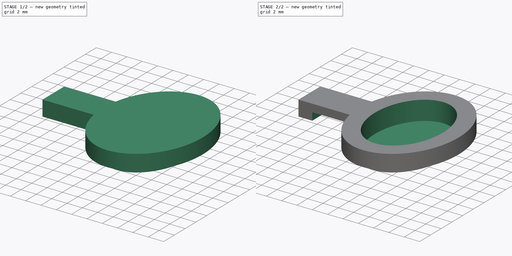
[diagram: build sequence overview — one tinted view per stage of 2, left to right]
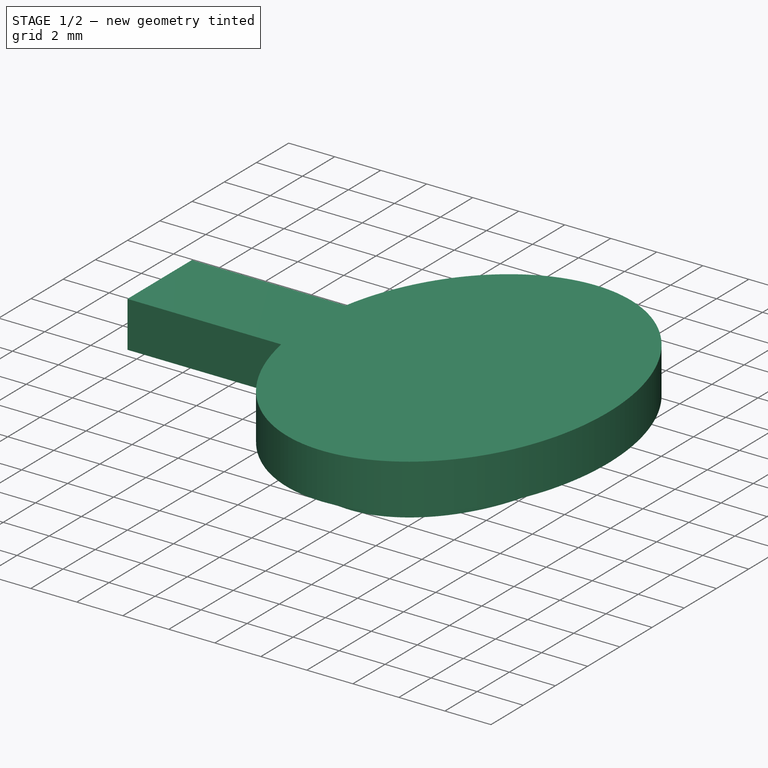
[diagram: stage 1 of 2 — iso view after this stage's code; geometry added in this stage tinted green]
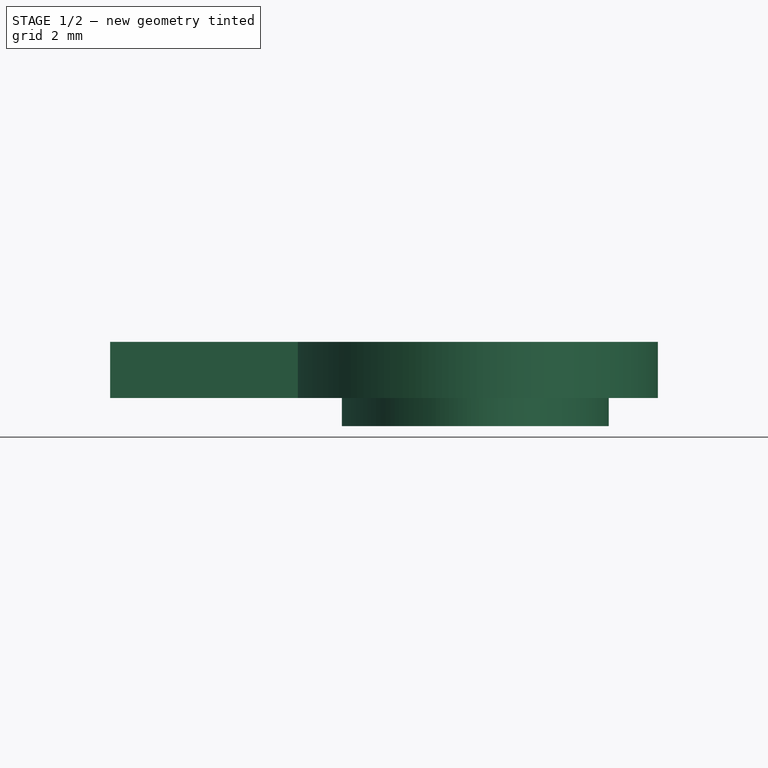
[diagram: stage 1 of 2 — front view after this stage's code; geometry added in this stage tinted green]
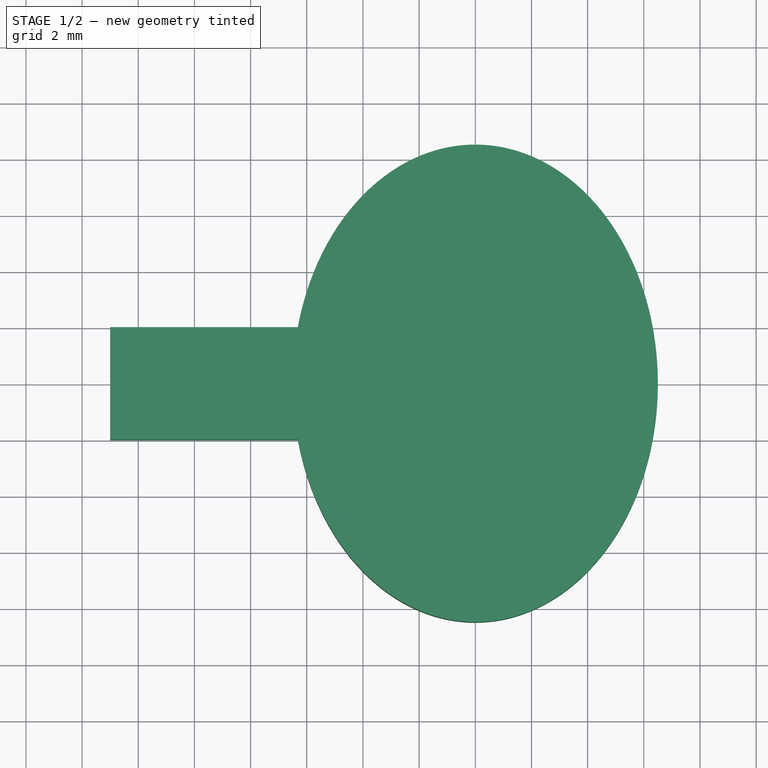
[diagram: stage 1 of 2 — top view after this stage's code; geometry added in this stage tinted green]
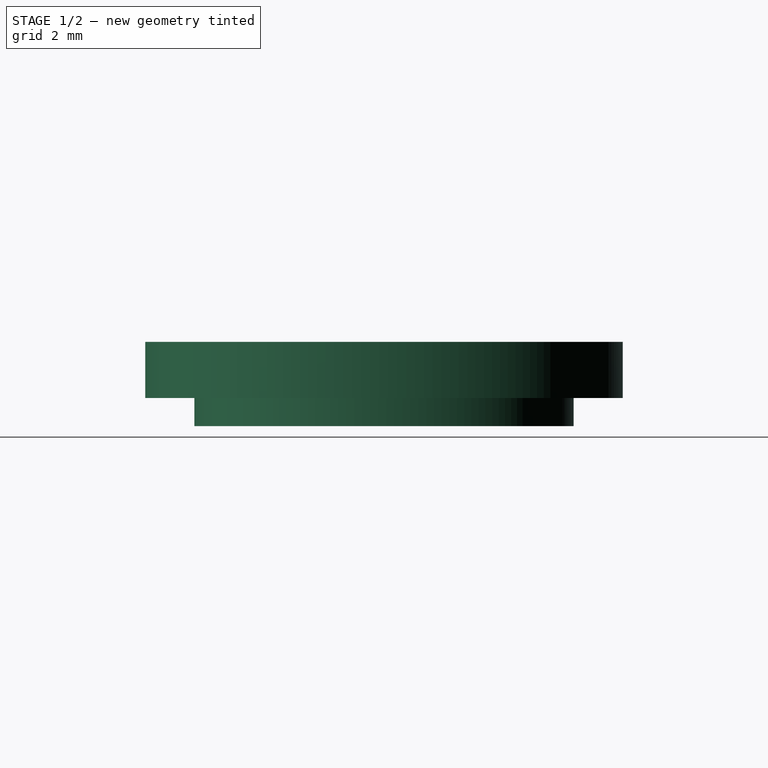
[diagram: stage 1 of 2 — right view after this stage's code; geometry added in this stage tinted green]
FCSTD DOCUMENT  (FreeCAD 0.20R27319 (Git))
Label: Remote Button Cap
License: All rights reserved
LicenseURL: http://en.wikipedia.org/wiki/All_rights_reserved
objects: Sketcher::SketchObject×4, PartDesign::Pad×2, PartDesign::Pocket×2, PartDesign::Body×1, App::MeasureDistance×1
note: 13 computed .brp shape members not serialized (recipe doc carries the construction recipe); baked Part::Feature solids carry a one-line shape summary decoded from their .brp

FEATURE [Sketcher::SketchObject] Sketch
  FullyConstrained = true
  MapMode = 5
  Support = -> [XY_Plane]
  sketch-geometry (5):
    g0: Ellipse CenterX=0 CenterY=0 CenterZ=0 NormalX=0 NormalY=0 NormalZ=1 MajorRadius=6.75 MinorRadius=4.75 AngleXU=-1.5708
    g1: LineSegment StartX=0 StartY=-6.75 StartZ=0 EndX=0 EndY=6.75 EndZ=0
    g2: LineSegment StartX=4.75 StartY=0 StartZ=0 EndX=-4.75 EndY=0 EndZ=0
    g3: GeomPoint X=5e-16 Y=-4.79583 Z=0
    g4: GeomPoint X=0 Y=4.79583 Z=0
  constraints (5):
    c: InternalAlignment(g1-g4 -> g0) x4
    c: Coincident(g0,g-1)
    c: PointOnObject(g2,g-1)
    c: DistanceY(g1,g1) = 13.5
    c: DistanceX(g2,g2) = 9.5
FEATURE [PartDesign::Pad] Pad
  Direction = (0,0,1)
  Length = 1
  Length2 = 10
  Profile = -> Sketch
  ReferenceAxis = -> Sketch [N_Axis]
  Type = 0
FEATURE [Sketcher::SketchObject] Sketch001
  FullyConstrained = true
  MapMode = 5
  Placement = pos=(0,0,1) rot=(0,0,1;0rad)
  Support = -> [Pad]
  sketch-geometry (9):
    g0: ArcOfEllipse CenterX=0 CenterY=0 CenterZ=0 NormalX=0 NormalY=0 NormalZ=1 MajorRadius=8.5 MinorRadius=6.5 AngleXU=1.5708 StartAngle=1.80832 EndAngle=7.61646
    g1: LineSegment StartX=0 StartY=8.5 StartZ=0 EndX=0 EndY=-8.5 EndZ=0
    g2: LineSegment StartX=-6.5 StartY=0 StartZ=0 EndX=6.5 EndY=0 EndZ=0
    g3: GeomPoint X=6e-16 Y=5.47723 Z=0
    g4: GeomPoint X=0 Y=-5.47723 Z=0
    g5: LineSegment StartX=-13 StartY=2 StartZ=0 EndX=-13 EndY=-2 EndZ=0
    g6: LineSegment StartX=-13 StartY=-2 StartZ=0 EndX=-6.31751 EndY=-2 EndZ=0
    g7: LineSegment StartX=-6.31751 StartY=2 StartZ=0 EndX=-13 EndY=2 EndZ=0
    g8: GeomPoint X=-9.65875 Y=0 Z=0
  constraints (16):
    c: InternalAlignment(g1-g4 -> g0) x4
    c: Coincident(g0,g-1)
    c: PointOnObject(g2,g-1)
    c: DistanceY(g1,g1) = 17
    c: DistanceX(g2,g2) = 13
    c: Coincident(g5,g6)
    c: Coincident(g7,g5)
    c: Horizontal(g6)
    c: Horizontal(g7)
    c: Vertical(g5)
    c: Symmetric(g6,g5,g8)
    c: PointOnObject(g8,g-1)
    c: Coincident(g0,g7)
    c: Coincident(g0,g6)
    c: DistanceX(g5,g0) = 13
    c: Distance(g5) = 4
FEATURE [PartDesign::Pad] Pad001
  BaseFeature = -> Pad
  Direction = (0,0,1)
  Length = 2
  Length2 = 10
  Profile = -> Sketch001
  ReferenceAxis = -> Sketch001 [N_Axis]
  Type = 0
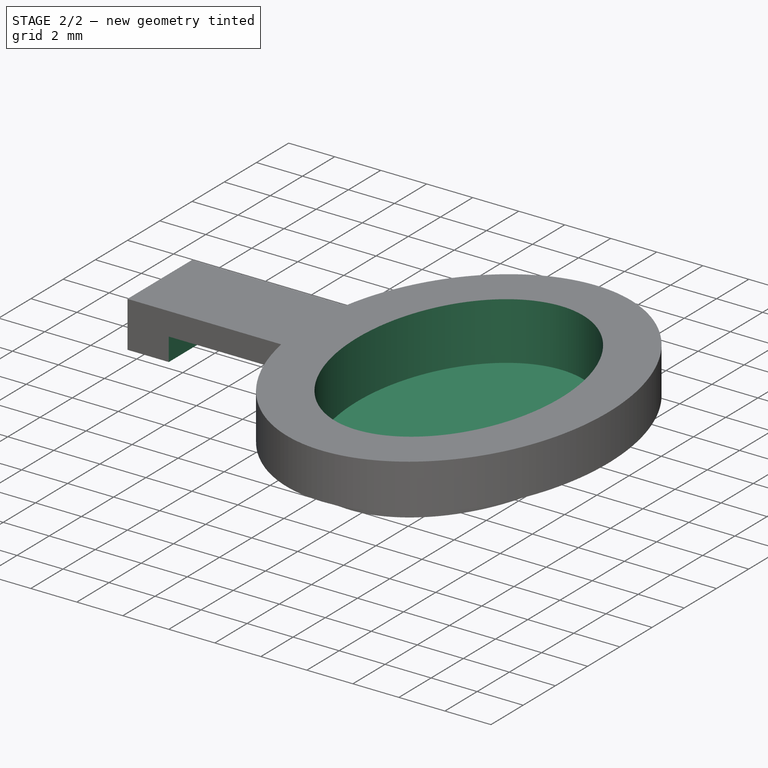
[diagram: stage 2 of 2 — iso view after this stage's code; geometry added in this stage tinted green]
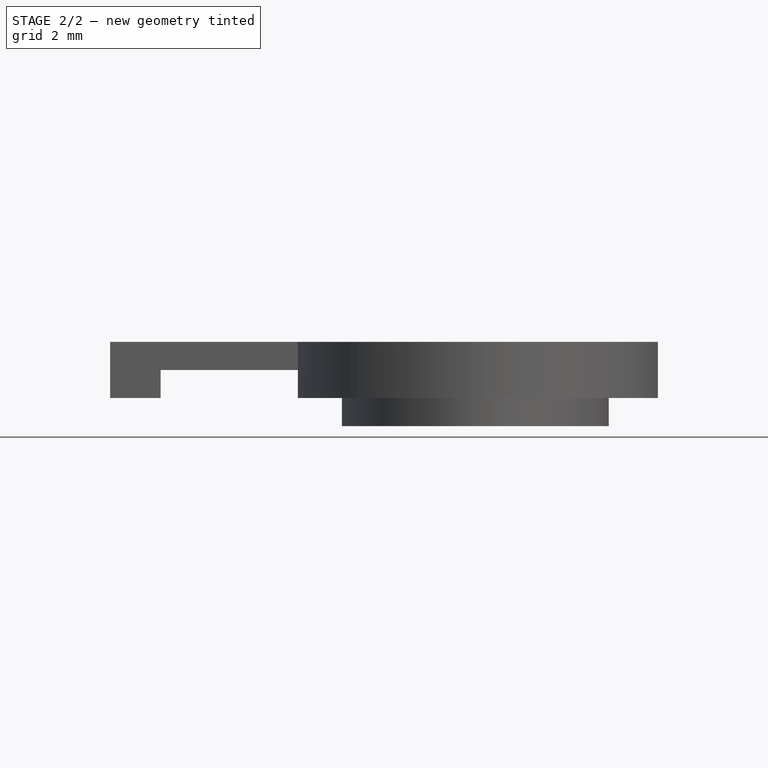
[diagram: stage 2 of 2 — front view after this stage's code; geometry added in this stage tinted green]
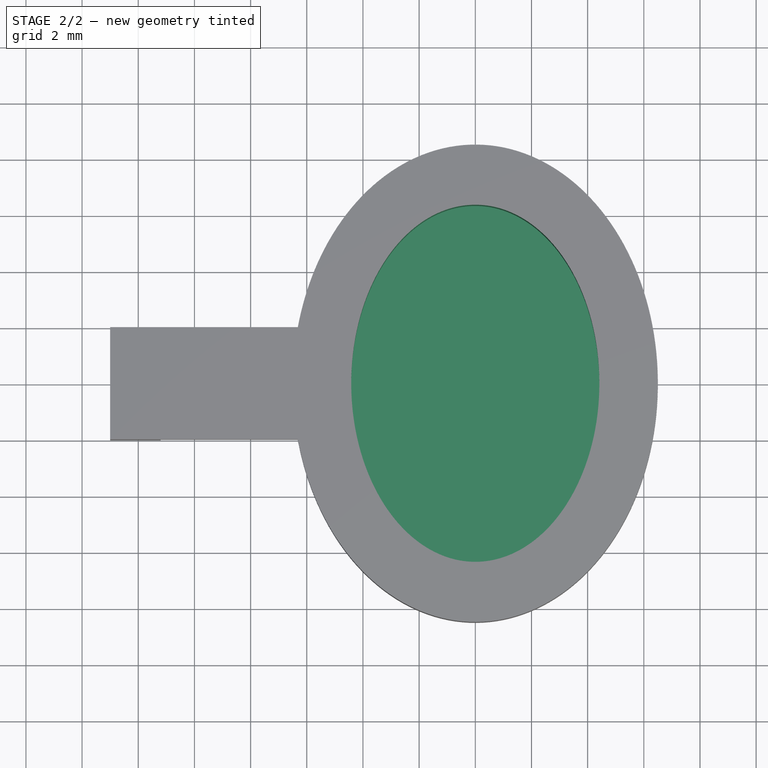
[diagram: stage 2 of 2 — top view after this stage's code; geometry added in this stage tinted green]
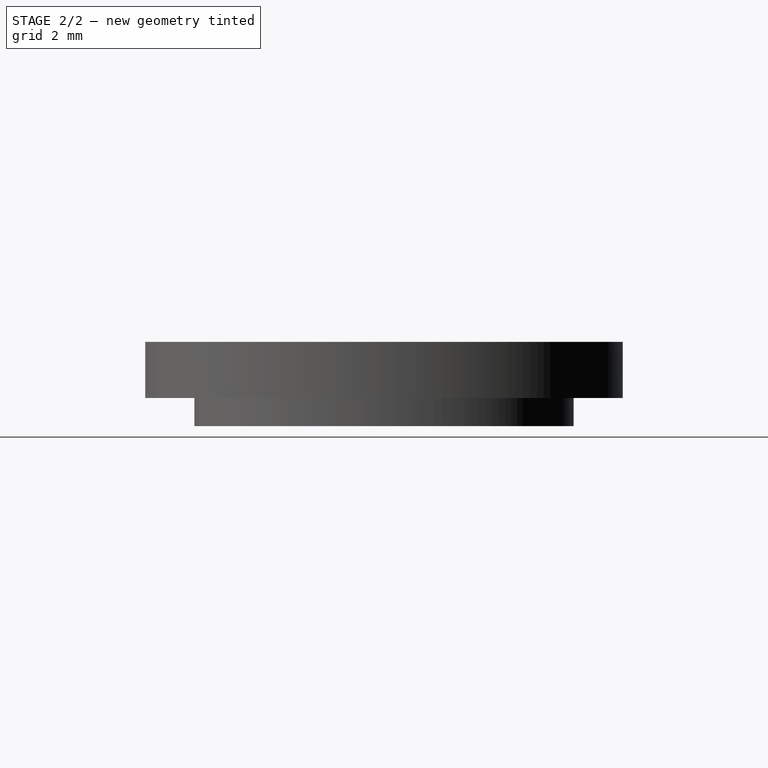
[diagram: stage 2 of 2 — right view after this stage's code; geometry added in this stage tinted green]
FEATURE [Sketcher::SketchObject] Sketch003
  FullyConstrained = false
  MapMode = 5
  Placement = pos=(0,0,3) rot=(0,0,1;0rad)
  Support = -> [Pad001]
  sketch-geometry (5):
    g0: Ellipse CenterX=0 CenterY=0 CenterZ=0 NormalX=0 NormalY=0 NormalZ=1 MajorRadius=6.3581 MinorRadius=4.41788 AngleXU=-1.5708
    g1: LineSegment StartX=0 StartY=-6.3581 StartZ=0 EndX=0 EndY=6.3581 EndZ=0
    g2: LineSegment StartX=4.41788 StartY=0 StartZ=0 EndX=-4.41788 EndY=0 EndZ=0
    g3: GeomPoint X=0 Y=-4.5725 Z=0
    g4: GeomPoint X=0 Y=4.5725 Z=0
  constraints (3):
    c: InternalAlignment(g1-g4 -> g0) x4
    c: Coincident(g0,g-1)
    c: PointOnObject(g1,g-2)
FEATURE [PartDesign::Pocket] Pocket
  BaseFeature = -> Pad001
  Direction = (0,0,-1)
  Length = 2.5
  Length2 = 5
  Profile = -> Sketch003
  ReferenceAxis = -> Sketch003 [N_Axis]
  Type = 0
FEATURE [Sketcher::SketchObject] Sketch005
  FullyConstrained = false
  MapMode = 5
  Placement = pos=(0,0,1) rot=(1,0,0;3.14159rad)
  sketch-geometry (5):
    g0: LineSegment StartX=-11.2038 StartY=-2 StartZ=0 EndX=-11.2038 EndY=2 EndZ=0
    g1: LineSegment StartX=-11.2038 StartY=2 StartZ=0 EndX=-6.31751 EndY=2 EndZ=0
    g2: LineSegment StartX=-6.31751 StartY=2 StartZ=0 EndX=-6.31751 EndY=-2 EndZ=0
    g3: LineSegment StartX=-6.31751 StartY=-2 StartZ=0 EndX=-11.2038 EndY=-2 EndZ=0
    g4: GeomPoint X=-8.76067 Y=0 Z=0
  constraints (10):
    c: Coincident(g0,g1)
    c: Coincident(g1,g2)
    c: Coincident(g2,g3)
    c: Coincident(g3,g0)
    c: Horizontal(g1)
    c: Horizontal(g3)
    c: Vertical(g0)
    c: Vertical(g2)
    c: Symmetric(g1,g0,g4)
    c: PointOnObject(g4,g-1)
FEATURE [PartDesign::Pocket] Pocket002
  BaseFeature = -> Pocket
  Direction = (0,0,1)
  Length = 1
  Length2 = 5
  Profile = -> Sketch005
  ReferenceAxis = -> Sketch005 [N_Axis]
  Type = 0
FEATURE [PartDesign::Body] Body
  Group = -> [Sketch,Pad,Sketch001,Pad001,Sketch003,Pocket,Sketch005,Pocket002]
  Origin = -> Origin
  Tip = -> Pocket002
FEATURE [App::MeasureDistance] Distance  label="Distance: 18.89 mm"
  Distance = 18.8932
  P1 = (-0.345948,-3e-16,-1.27813)
  P2 = (-19.1011,0.0935358,1)
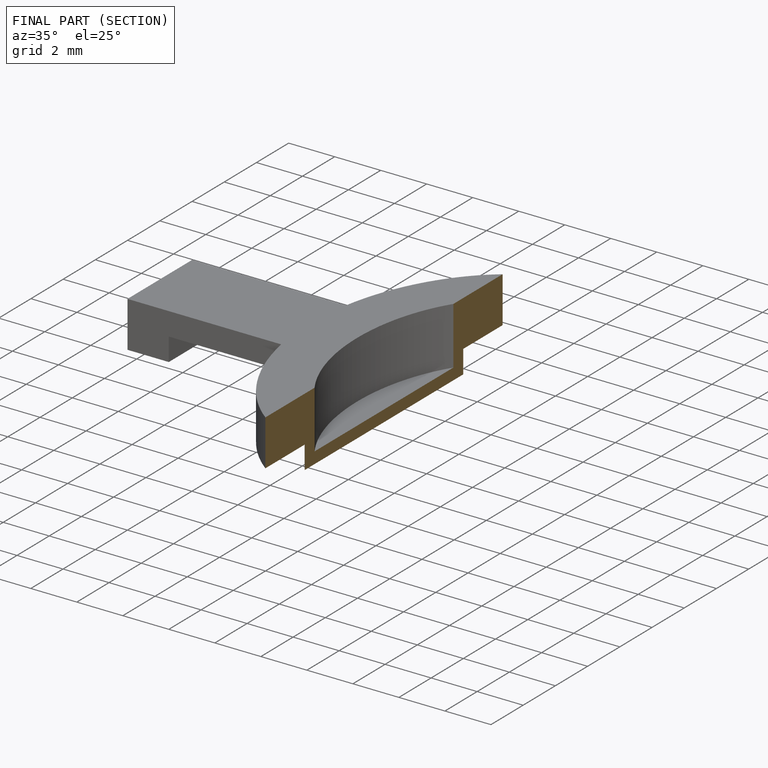
[diagram: finished part — half-section view (interior)]
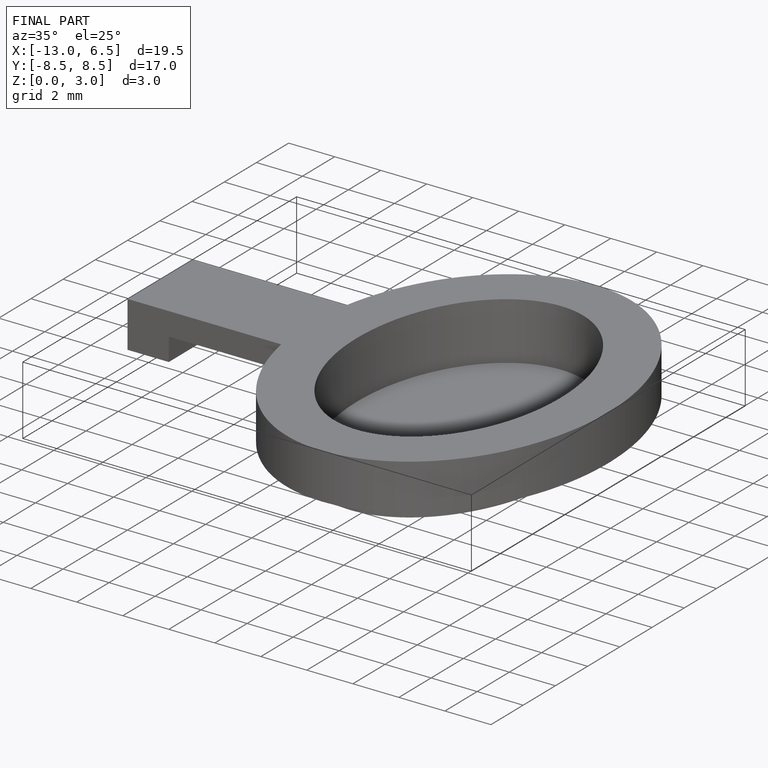
[diagram: finished part — iso view with bounding-box wireframe]
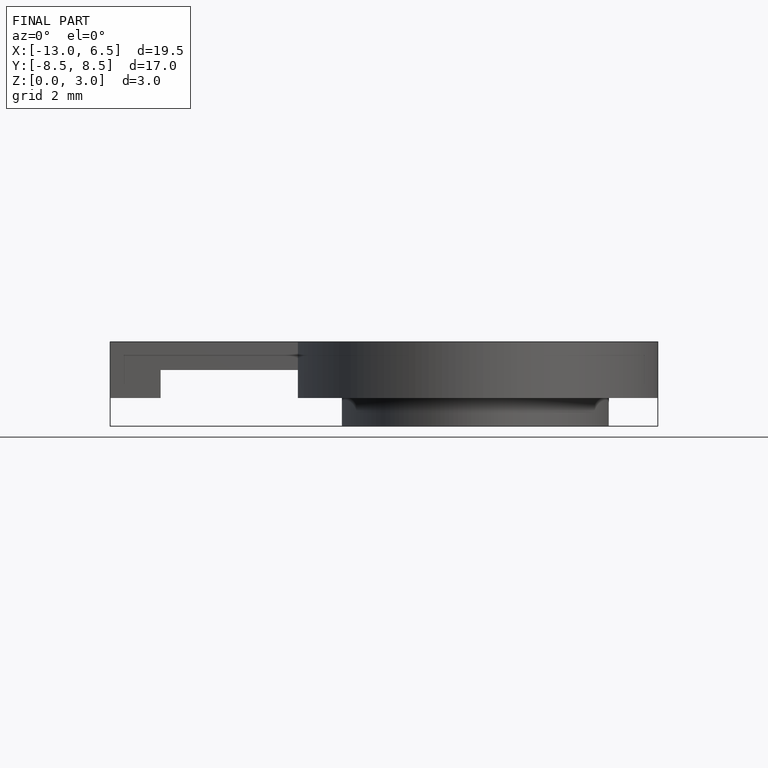
[diagram: finished part — front view with bounding-box wireframe]
